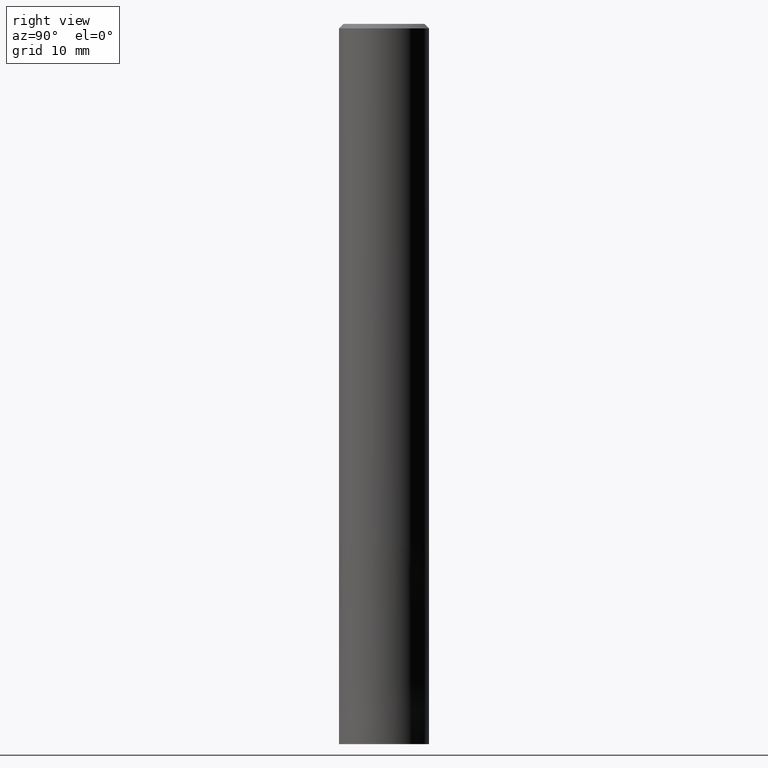
[diagram: clean part render]
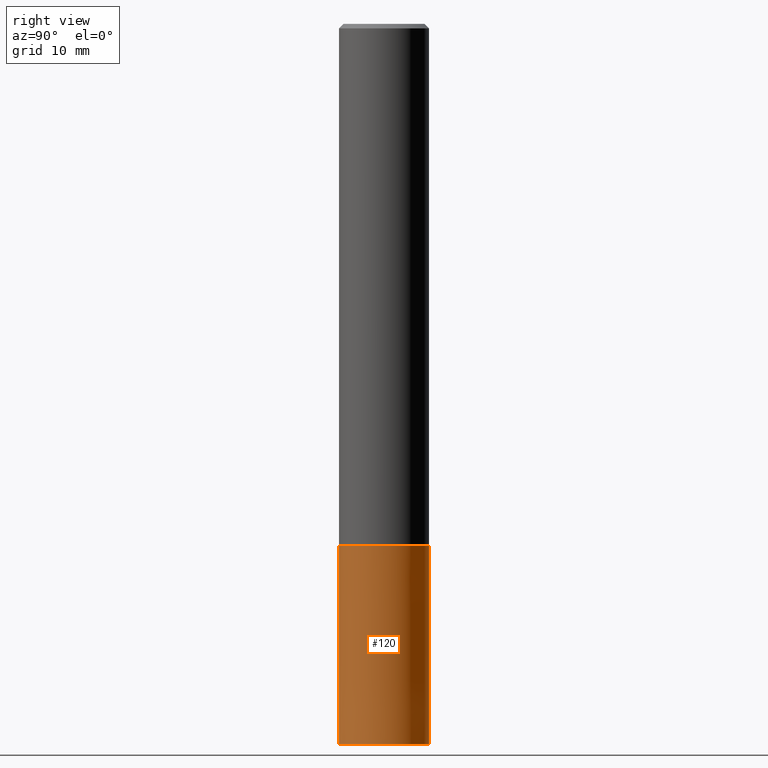
[diagram: same view with one face highlighted and labeled with its STEP entity id]
A machine part, right view. The second image highlights one B-rep face of the part: STEP entity #120.
In plain terms, the highlighted conical surface has half-angle 0 deg.
Its self-contained STEP definition (entity closure, byte-faithful):
#68=EDGE_CURVE('',#82,#98,#156,.T.);
#70=EDGE_CURVE('',#124,#112,#158,.T.);
#72=EDGE_CURVE('',#124,#98,#160,.T.);
#76=EDGE_CURVE('',#112,#82,#164,.T.);
#82=VERTEX_POINT('',#172);
#98=VERTEX_POINT('',#189);
#112=VERTEX_POINT('',#205);
#120=ADVANCED_FACE('',(#215),#216,.T.);
#124=VERTEX_POINT('',#221);
#156=LINE('',#251,#252);
#158=LINE('',#255,#256);
#160=CIRCLE('',#259,4.9999);
#164=CIRCLE('',#266,5.0);
#172=CARTESIAN_POINT('',(6.12303176911189E-016,-5.0,-80.0));
#189=CARTESIAN_POINT('',(6.1229093084765E-016,-4.9999,-58.0));
#205=CARTESIAN_POINT('',(0.0,5.0,-80.0));
#215=FACE_OUTER_BOUND('',#324,.T.);
#216=CONICAL_SURFACE('',#325,4.99995,4.54545454541265E-006);
#221=CARTESIAN_POINT('',(0.0,4.9999,-58.0));
#251=CARTESIAN_POINT('',(6.12297053879419E-016,-4.99995,-69.0));
#252=VECTOR('',#347,1.0);
#255=CARTESIAN_POINT('',(-6.12297053879419E-016,4.99995,-69.0));
#256=VECTOR('',#348,1.0);
#259=AXIS2_PLACEMENT_3D('',#349,#350,#351);
#266=AXIS2_PLACEMENT_3D('',#353,#354,#355);
#324=EDGE_LOOP('',(#419,#420,#421,#422));
#325=AXIS2_PLACEMENT_3D('',#423,#424,#425);
#347=DIRECTION('',(-5.56639251730396E-022,4.545454545397E-006,0.999999999989669));
#348=DIRECTION('',(-5.56639251730397E-022,4.545454545397E-006,-0.999999999989669));
#349=CARTESIAN_POINT('',(0.0,0.0,-58.0));
#350=DIRECTION('',(0.0,0.0,-1.0));
#351=DIRECTION('',(0.0,1.0,0.0));
#353=CARTESIAN_POINT('',(0.0,0.0,-80.0));
#354=DIRECTION('',(0.0,0.0,-1.0));
#355=DIRECTION('',(0.0,1.0,0.0));
#419=ORIENTED_EDGE('',*,*,#70,.F.);
#420=ORIENTED_EDGE('',*,*,#72,.T.);
#421=ORIENTED_EDGE('',*,*,#68,.F.);
#422=ORIENTED_EDGE('',*,*,#76,.F.);
#423=CARTESIAN_POINT('',(0.0,0.0,-69.0));
#424=DIRECTION('',(0.0,-0.0,-1.0));
#425=DIRECTION('',(0.0,1.0,0.0));